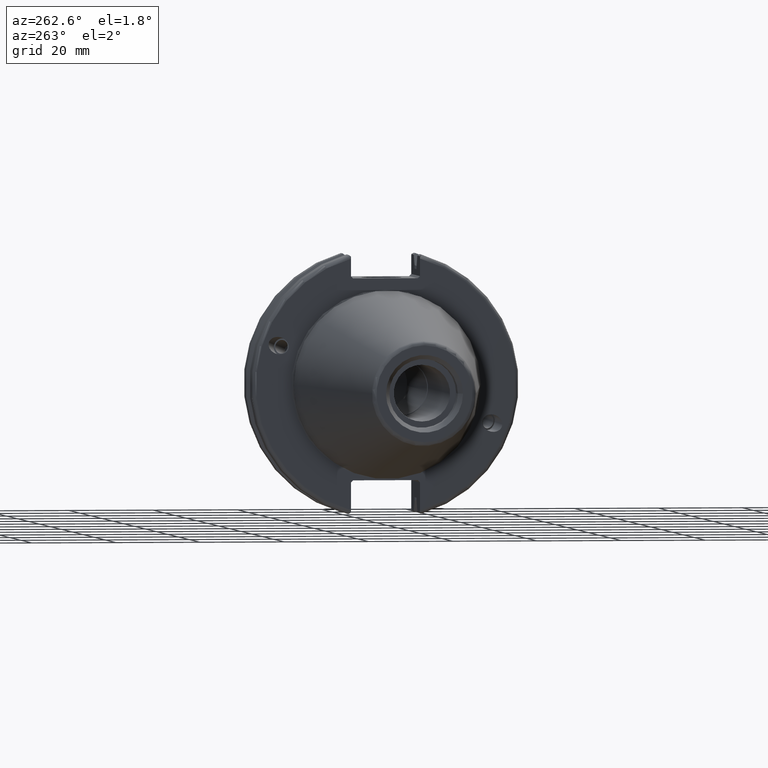
[diagram: clean part render]
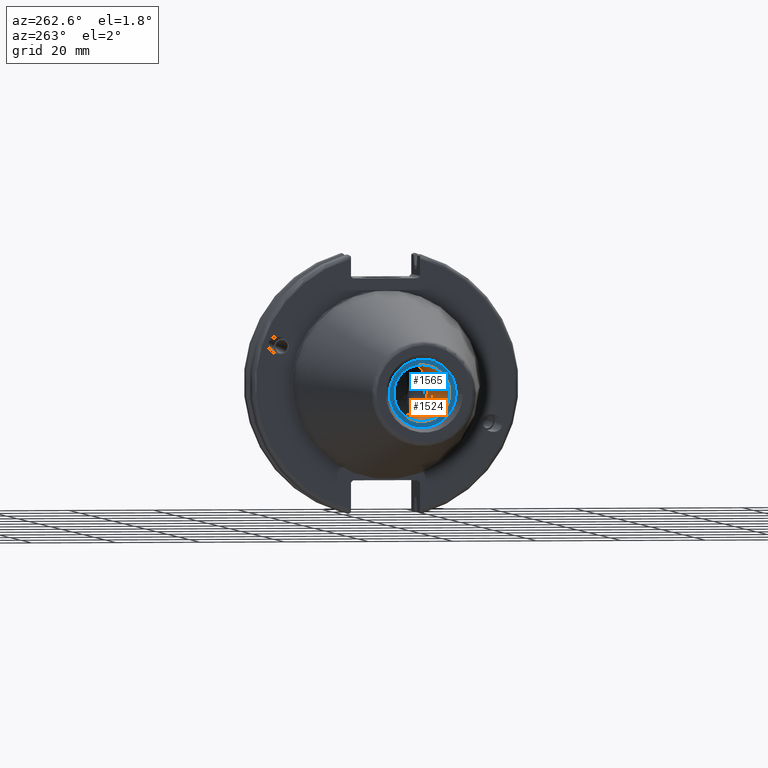
[diagram: same view with the hole feature highlighted: cylindrical wall and planar end face, labeled with their STEP entity ids]
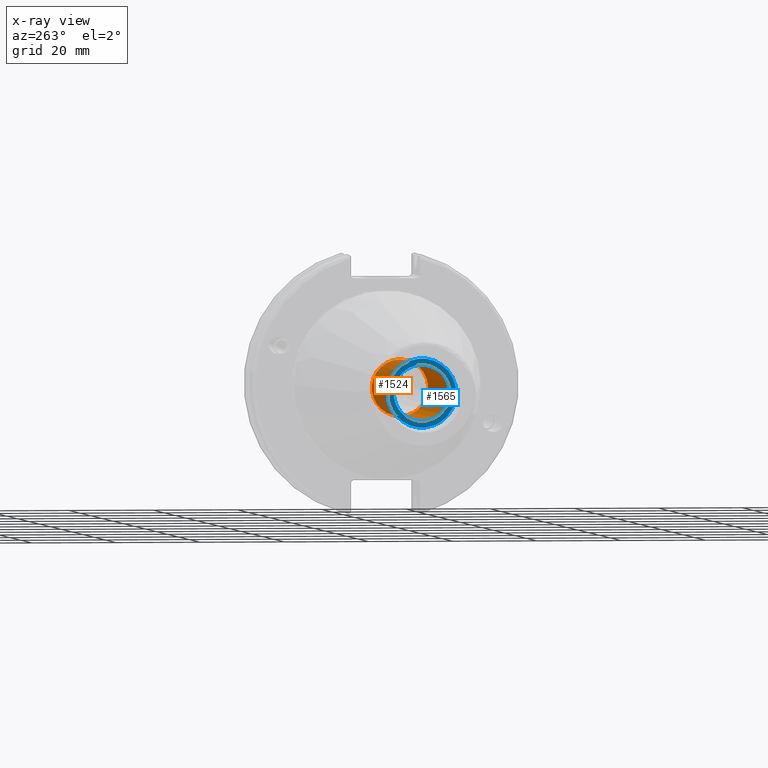
[diagram: x-ray of the same camera — body ghosted, the hole faces saturated]
A machine part, auxiliary view. The highlighted faces form one hole feature of diameter 13.3858 mm: the cylindrical wall (entity #1524, orange) and its adjacent planar end face (entity #1565, blue) — they share a circular edge in the B-rep.
The next image is the same camera in x-ray (body ghosted, the hole faces saturated) — the bore reads through the body.
Wall:
#98=CYLINDRICAL_SURFACE('',#1695,6.6929);
#205=LINE('',#2688,#301);
#301=VECTOR('',#2028,6.6929);
#404=FACE_OUTER_BOUND('',#499,.T.);
#499=EDGE_LOOP('',(#1228,#1229,#1230,#1231));
#594=CIRCLE('',#1694,6.6929);
#595=CIRCLE('',#1696,6.6929);
#719=VERTEX_POINT('',#2682);
#720=VERTEX_POINT('',#2686);
#906=EDGE_CURVE('',#719,#719,#594,.T.);
#908=EDGE_CURVE('',#720,#720,#595,.T.);
#909=EDGE_CURVE('',#720,#719,#205,.T.);
#1228=ORIENTED_EDGE('',*,*,#908,.F.);
#1229=ORIENTED_EDGE('',*,*,#909,.T.);
#1230=ORIENTED_EDGE('',*,*,#906,.F.);
#1231=ORIENTED_EDGE('',*,*,#909,.F.);
#1524=ADVANCED_FACE('',(#404),#98,.F.);
#1694=AXIS2_PLACEMENT_3D('',#2683,#2021,#2022);
#1695=AXIS2_PLACEMENT_3D('',#2685,#2024,#2025);
#1696=AXIS2_PLACEMENT_3D('',#2687,#2026,#2027);
#2021=DIRECTION('center_axis',(-1.,0.,0.));
#2022=DIRECTION('ref_axis',(0.,0.,1.));
#2024=DIRECTION('center_axis',(-1.,0.,0.));
#2025=DIRECTION('ref_axis',(0.,0.,1.));
#2026=DIRECTION('center_axis',(1.,0.,0.));
#2027=DIRECTION('ref_axis',(0.,0.,1.));
#2028=DIRECTION('',(1.,0.,0.));
#2682=CARTESIAN_POINT('',(-23.25,-8.19643856201332E-16,-6.6929));
#2683=CARTESIAN_POINT('Origin',(-23.25,0.,0.));
#2685=CARTESIAN_POINT('Origin',(-45.75,0.,0.));
#2686=CARTESIAN_POINT('',(-63.45,8.19643856201332E-16,-6.6929));
#2687=CARTESIAN_POINT('Origin',(-63.45,0.,0.));
#2688=CARTESIAN_POINT('',(-45.75,-8.19643856201332E-16,-6.6929));
End face:
#121=FACE_BOUND('',#546,.T.);
#155=PLANE('',#1763);
#445=FACE_OUTER_BOUND('',#545,.T.);
#545=EDGE_LOOP('',(#1450));
#546=EDGE_LOOP('',(#1451));
#595=CIRCLE('',#1696,6.6929);
#622=CIRCLE('',#1764,8.14999999999999);
#720=VERTEX_POINT('',#2686);
#775=VERTEX_POINT('',#2990);
#908=EDGE_CURVE('',#720,#720,#595,.T.);
#1004=EDGE_CURVE('',#775,#775,#622,.T.);
#1450=ORIENTED_EDGE('',*,*,#1004,.F.);
#1451=ORIENTED_EDGE('',*,*,#908,.T.);
#1565=ADVANCED_FACE('',(#445,#121),#155,.T.);
#1696=AXIS2_PLACEMENT_3D('',#2687,#2026,#2027);
#1763=AXIS2_PLACEMENT_3D('',#2989,#2205,#2206);
#1764=AXIS2_PLACEMENT_3D('',#2991,#2207,#2208);
#2026=DIRECTION('center_axis',(1.,0.,0.));
#2027=DIRECTION('ref_axis',(0.,0.,1.));
#2205=DIRECTION('center_axis',(-1.,0.,0.));
#2206=DIRECTION('ref_axis',(0.,0.,1.));
#2207=DIRECTION('center_axis',(1.,0.,0.));
#2208=DIRECTION('ref_axis',(0.,0.,-1.));
#2686=CARTESIAN_POINT('',(-63.45,8.19643856201332E-16,-6.6929));
#2687=CARTESIAN_POINT('Origin',(-63.45,0.,0.));
#2989=CARTESIAN_POINT('Origin',(-63.45,8.14999999999999,0.));
#2990=CARTESIAN_POINT('',(-63.45,-8.14999999999999,-9.98087141305092E-16));
#2991=CARTESIAN_POINT('Origin',(-63.45,0.,0.));